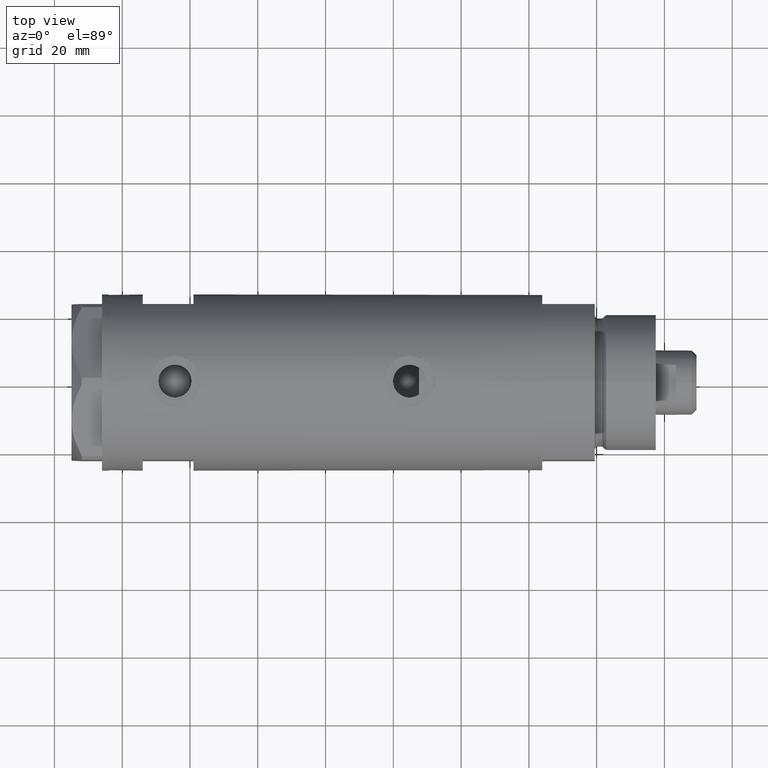
[diagram: clean part render]
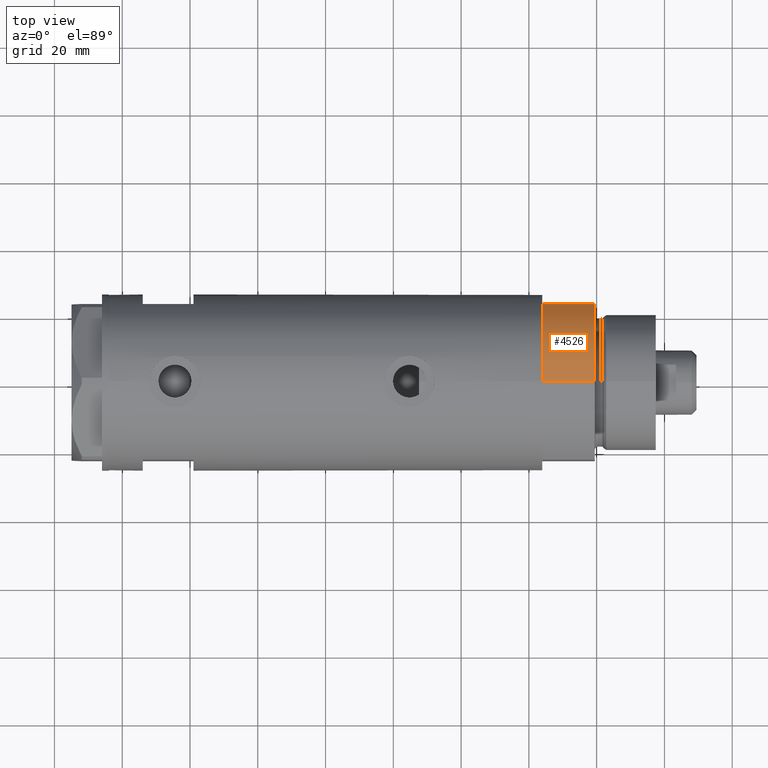
[diagram: same view with one face highlighted and labeled with its STEP entity id]
A machine part, top view. The second image highlights one B-rep face of the part: STEP entity #4526.
In plain terms, the highlighted cylindrical surface (partial cylindrical patch) has radius 26 mm, axis along (-1, -0, 0).
Its self-contained STEP definition (entity closure, byte-faithful):
#402 = CARTESIAN_POINT ( 'NONE',  ( -12.12435565298215145, 23.00000000000000355, 0.000000000000000000 ) ) ;
#419 = EDGE_CURVE ( 'NONE', #479, #5994, #6043, .T. ) ;
#456 = DIRECTION ( 'NONE',  ( 0.000000000000000000, 0.000000000000000000, 1.000000000000000000 ) ) ;
#479 = VERTEX_POINT ( 'NONE', #2673 ) ;
#575 = EDGE_LOOP ( 'NONE', ( #3770, #5427, #4966, #701 ) ) ;
#627 = CARTESIAN_POINT ( 'NONE',  ( 0.000000000000000000, 0.000000000000000000, 15.50000000000000000 ) ) ;
#701 = ORIENTED_EDGE ( 'NONE', *, *, #5850, .T. ) ;
#794 = LINE ( 'NONE', #402, #1749 ) ;
#866 = CARTESIAN_POINT ( 'NONE',  ( -12.12435565298214613, 23.00000000000000355, 15.50000000000000000 ) ) ;
#1205 = FACE_OUTER_BOUND ( 'NONE', #575, .T. ) ;
#1485 = CIRCLE ( 'NONE', #5060, 26.00000000000000355 ) ;
#1593 = DIRECTION ( 'NONE',  ( -0.000000000000000000, -0.000000000000000000, -1.000000000000000000 ) ) ;
#1749 = VECTOR ( 'NONE', #4676, 1000.000000000000000 ) ;
#1755 = EDGE_CURVE ( 'NONE', #6216, #479, #6242, .T. ) ;
#1977 = DIRECTION ( 'NONE',  ( 1.000000000000000000, 0.000000000000000000, 0.000000000000000000 ) ) ;
#2110 = VERTEX_POINT ( 'NONE', #2968 ) ;
#2673 = CARTESIAN_POINT ( 'NONE',  ( -26.00000000000000355, 0.000000000000000000, 15.50000000000000000 ) ) ;
#2769 = EDGE_CURVE ( 'NONE', #2110, #6216, #794, .T. ) ;
#2968 = CARTESIAN_POINT ( 'NONE',  ( -12.12435565298215145, 23.00000000000000355, 0.000000000000000000 ) ) ;
#3359 = CARTESIAN_POINT ( 'NONE',  ( 0.000000000000000000, 0.000000000000000000, 0.000000000000000000 ) ) ;
#3604 = DIRECTION ( 'NONE',  ( -1.000000000000000000, 0.000000000000000000, 0.000000000000000000 ) ) ;
#3665 = DIRECTION ( 'NONE',  ( -0.000000000000000000, -0.000000000000000000, -1.000000000000000000 ) ) ;
#3770 = ORIENTED_EDGE ( 'NONE', *, *, #419, .F. ) ;
#3979 = VECTOR ( 'NONE', #1593, 1000.000000000000000 ) ;
#4300 = AXIS2_PLACEMENT_3D ( 'NONE', #5468, #4988, #1977 ) ;
#4331 = AXIS2_PLACEMENT_3D ( 'NONE', #627, #3665, #3604 ) ;
#4526 = ADVANCED_FACE ( 'NONE', ( #1205 ), #4604, .T. ) ;
#4604 = CYLINDRICAL_SURFACE ( 'NONE', #4331, 26.00000000000000355 ) ;
#4676 = DIRECTION ( 'NONE',  ( -0.000000000000000000, -0.000000000000000000, 1.000000000000000000 ) ) ;
#4966 = ORIENTED_EDGE ( 'NONE', *, *, #2769, .F. ) ;
#4988 = DIRECTION ( 'NONE',  ( 0.000000000000000000, 0.000000000000000000, 1.000000000000000000 ) ) ;
#5060 = AXIS2_PLACEMENT_3D ( 'NONE', #3359, #456, #6327 ) ;
#5427 = ORIENTED_EDGE ( 'NONE', *, *, #1755, .F. ) ;
#5468 = CARTESIAN_POINT ( 'NONE',  ( 0.000000000000000000, 0.000000000000000000, 15.50000000000000000 ) ) ;
#5850 = EDGE_CURVE ( 'NONE', #2110, #5994, #1485, .T. ) ;
#5985 = CARTESIAN_POINT ( 'NONE',  ( -26.00000000000000355, 0.000000000000000000, 15.50000000000000000 ) ) ;
#5994 = VERTEX_POINT ( 'NONE', #6017 ) ;
#6017 = CARTESIAN_POINT ( 'NONE',  ( -26.00000000000000355, 0.000000000000000000, 0.000000000000000000 ) ) ;
#6043 = LINE ( 'NONE', #5985, #3979 ) ;
#6216 = VERTEX_POINT ( 'NONE', #866 ) ;
#6242 = CIRCLE ( 'NONE', #4300, 26.00000000000000355 ) ;
#6327 = DIRECTION ( 'NONE',  ( 1.000000000000000000, 0.000000000000000000, 0.000000000000000000 ) ) ;